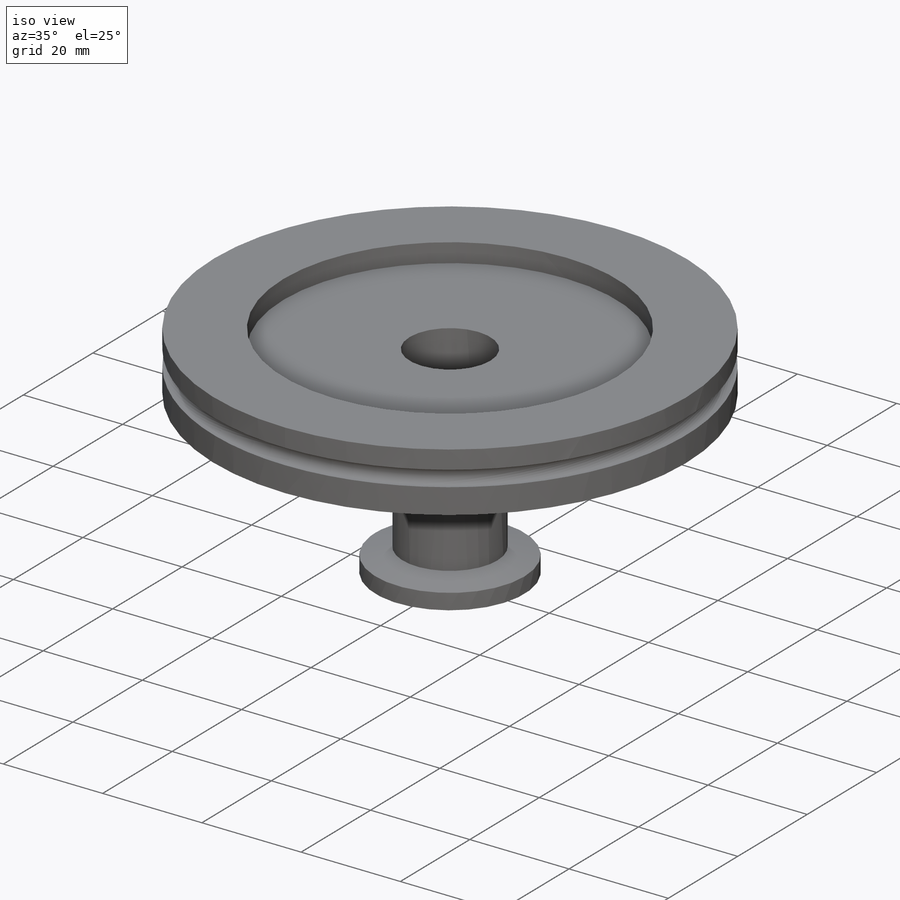
[diagram: iso view]
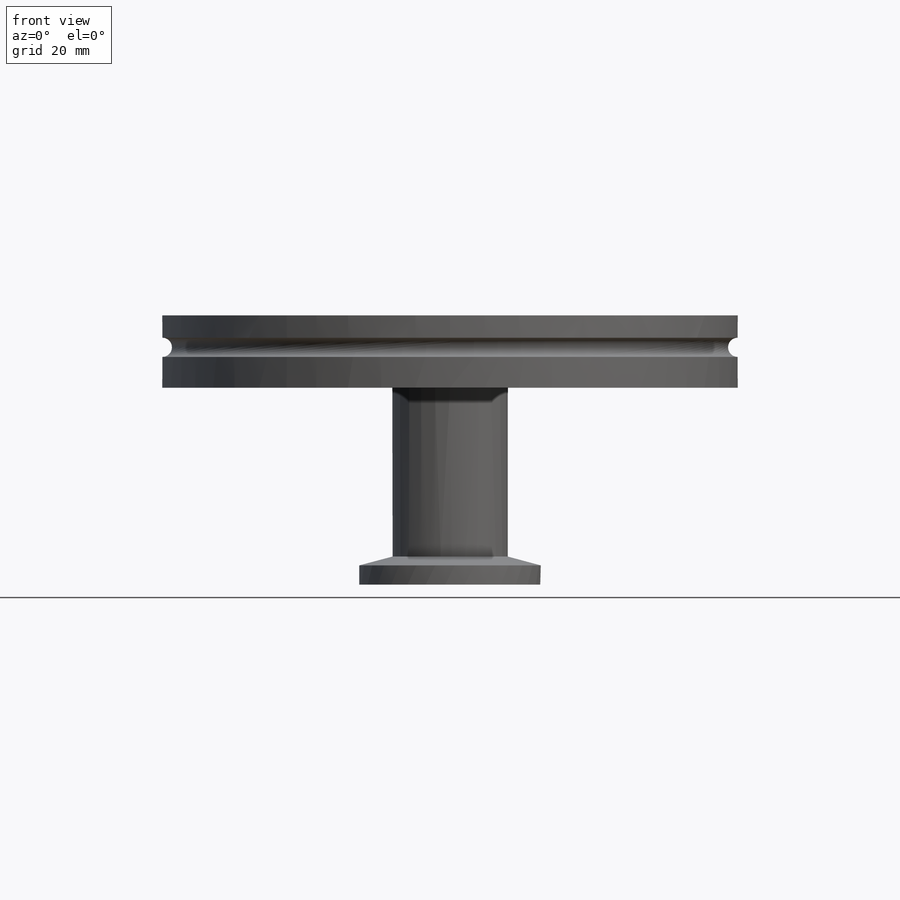
[diagram: front view]
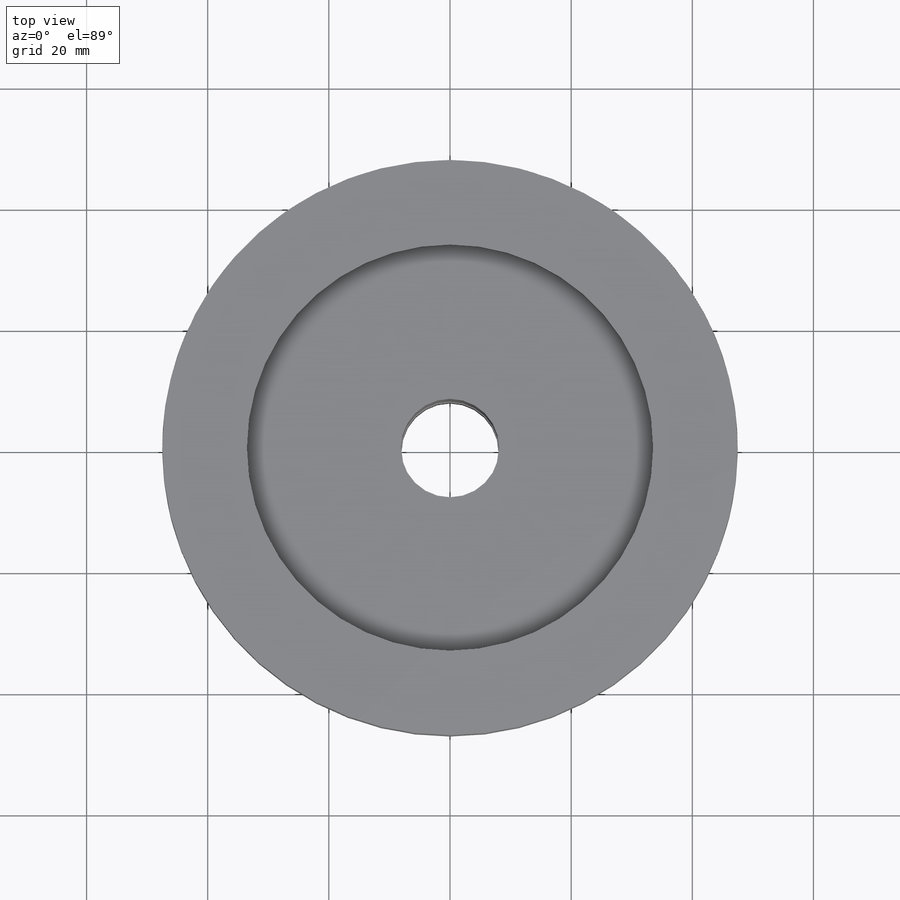
[diagram: top view]
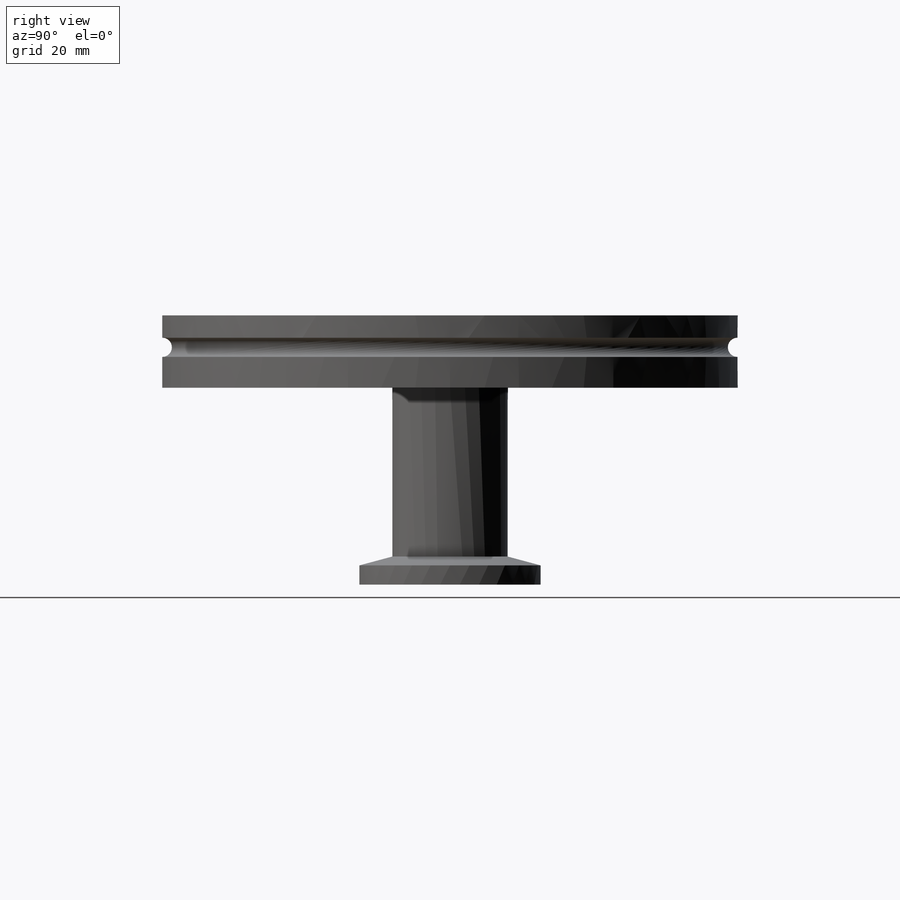
[diagram: right view]
SOLIDWORKS PART (.sldprt)
format: sldprt  version: not decoded by parser v0  size: 433,664 bytes
history: native  units: mm
features: sketch x7, revolve x4, cut_revolve x3, plane x2, material x1 (+14 scaffold rows collapsed)
feature tree (31):
  scaffold x14  (default folders/planes/origin — collapsed)
  material  "AISI 304"
  sketch  "Sketch1"  dims[c1.D1=~4.520195mm c2.D1=20.0deg c2.D=11.938mm c2.LF_Flange_Diam=95.0mm c2.D4=48.3108mm c2.D5=41.91mm c2.D6=1.1684mm c2.D7=0.6604mm c3.D5=3.2004mm]
  revolve  "Blank"  Angle=360deg
  sketch  "Sketch7"  dims[c1.U=69.85mm c1.Tube ID Bottom=16.256mm c1.Pipe Depth=7.366mm c1.D1=7.366mm c1.D2=21.082mm c1.D3=21.082mm c2.D2=21.082mm c2.D3=21.082mm c3.D2=21.082mm c3.Flange to Bore=3.81mm c3.D1=13.97mm c4.D2=101.981mm]
  cut_revolve  "Single Side Bore"  Angle=360deg
  sketch  "Sketch9"  dims[c1.Height=44.45mm c1.D1=~39.375657mm c2.D1=105.0deg c2.D2=2.6162mm c2.D3=3.175mm c2.D4=29.972mm c2.D5=17.272mm c2.D6=5.08mm c2.D7=16.256mm]
  revolve  "KF Flange"  Angle=360deg
  sketch  "Sketch8"  dims[c1.D3=19.05mm c1.D1=9.525mm c1.D2=9.525mm c2.D3=2.1082mm c2.D1=9.525mm c2.D2=15.24mm c2.Top Tube ID=16.256mm c3.D3=2.54mm c3.Top Tube OD=19.05mm c4.D3=1.4605mm c4.Bottom to Conical=6.35mm c4.D1=1.8415mm]
  revolve  "Revolve1"  Angle=360deg
  sketch  "Sketch13"  dims[c1.D1=~2.116649mm c1.D2=~4.201428mm c2.D1=2.032mm c2.D2=5.08mm c2.D3=2.54mm]
  cut_revolve  "Cut-Revolve2"  Angle=360deg
  sketch  "xtra diam"  dims[c1.D1=~7.865717mm c1.D2=~0.935474mm c2.D1=16.002mm c2.D2=14.097mm]
  revolve  "Extra Diameter"  Angle=360deg
  sketch  "Sketch15"  dims[D1=3.175mm D2=3.683mm D3=3.175mm]
  cut_revolve  "Cut-Revolve3"  Angle=360deg
  plane  "Plane1"  Offset=1.905mm
  plane  "Plane2"  Offset=2mm
decode coverage: 14 of 14 modeling features carry decoded parameters
note: ~ marks probable driven/reference dimensions
note: suppression state not decoded; provenance and decode notes live in map.json
